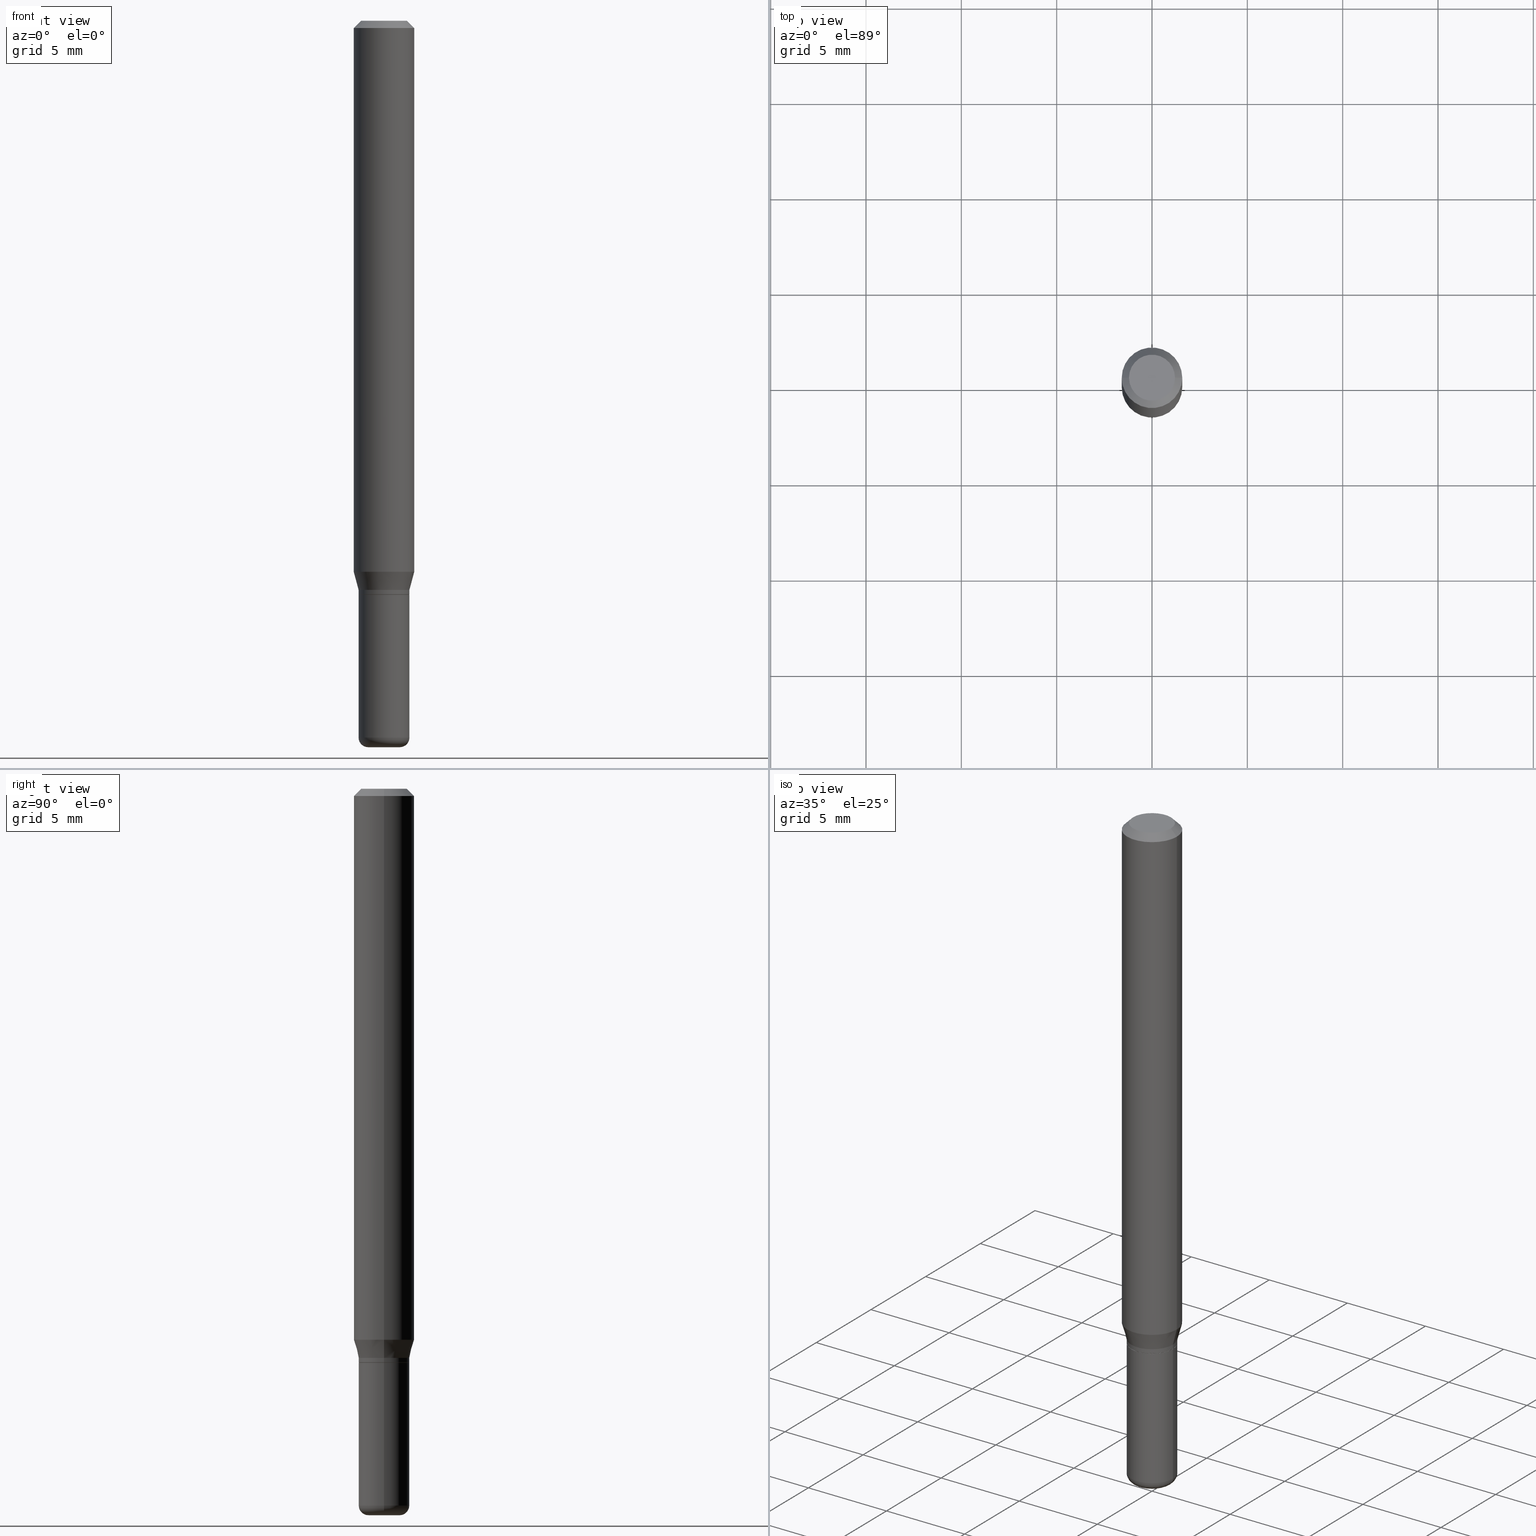
[diagram: canonical four-view strip — front | top / right | iso, engineering-drawing reading convention]
A machine part, canonical four-view strip (front | top / right | iso — engineering-drawing reading convention). The complete STEP part file that produces these views, byte-faithful:
ISO-10303-21;
HEADER;
FILE_DESCRIPTION (( 'STEP AP203' ),
    '1' );
FILE_NAME ('09093.STEP',
    '2024-02-29T22:03:21',
    ( '' ),
    ( '' ),
    'SwSTEP 2.0',
    'SolidWorks 2023',
    '' );
FILE_SCHEMA (( 'CONFIG_CONTROL_DESIGN' ));
ENDSEC;

DATA;
#1 = CARTESIAN_POINT ( 'NONE',  ( 0.05250000000000000500, -3.666055405785290122E-16, 2.559992807292866361E-30 ) ) ;
#2 = ORIENTED_EDGE ( 'NONE', *, *, #431, .F. ) ;
#3 = LOCAL_TIME ( 17, 3, 21.00000000000000000, #38 ) ;
#4 = FACE_OUTER_BOUND ( 'NONE', #452, .T. ) ;
#5 = CARTESIAN_POINT ( 'NONE',  ( 3.619293833154002365E-29, -5.167392381487854879E-15, -1.479999999999999982 ) ) ;
#6 = CARTESIAN_POINT ( 'NONE',  ( 3.668203209277632395E-31, -5.237222008264614861E-17, -0.01499999999999970281 ) ) ;
#7 = AXIS2_PLACEMENT_3D ( 'NONE', #5, #325, #167 ) ;
#8 = EDGE_CURVE ( 'NONE', #424, #492, #353, .T. ) ;
#9 = DIRECTION ( 'NONE',  ( -1.000000000000000000, 7.105427357601009747E-15, 0.000000000000000000 ) ) ;
#10 = MANIFOLD_SOLID_BREP ( 'Body-Move/Copy2[1]', #386 ) ;
#11 = APPLICATION_CONTEXT ( 'configuration controlled 3d designs of mechanical parts and assemblies' ) ;
#12 = FACE_OUTER_BOUND ( 'NONE', #219, .T. ) ;
#13 = AXIS2_PLACEMENT_3D ( 'NONE', #138, #334, #218 ) ;
#14 = APPROVAL_PERSON_ORGANIZATION ( #114, #389, #513 ) ;
#15 = FACE_OUTER_BOUND ( 'NONE', #89, .T. ) ;
#16 = ORIENTED_EDGE ( 'NONE', *, *, #47, .T. ) ;
#17 = MANIFOLD_SOLID_BREP ( 'Body-Move/Copy2[2]', #370 ) ;
#18 = CARTESIAN_POINT ( 'NONE',  ( 0.05250000000000002581, -5.533997922066384039E-15, -1.479999999999999982 ) ) ;
#19 = EDGE_LOOP ( 'NONE', ( #191, #163, #57, #60 ) ) ;
#20 = PERSON_AND_ORGANIZATION ( #408, #461 ) ;
#21 = CARTESIAN_POINT ( 'NONE',  ( 0.06250000000000000000, -4.811533449433669144E-16, -0.01499999999999970281 ) ) ;
#22 = ORIENTED_EDGE ( 'NONE', *, *, #140, .T. ) ;
#23 = APPROVAL_DATE_TIME ( #500, #336 ) ;
#24 = CONICAL_SURFACE ( 'NONE', #446, 0.05200000000000001149, 0.7853981633972775267 ) ;
#25 = PRODUCT_DEFINITION_FORMATION_WITH_SPECIFIED_SOURCE ( 'ANY', '', #327, .NOT_KNOWN. ) ;
#26 = ORIENTED_EDGE ( 'NONE', *, *, #342, .F. ) ;
#27 = EDGE_CURVE ( 'NONE', #378, #230, #159, .T. ) ;
#28 = PLANE ( 'NONE',  #13 ) ;
#29 = VERTEX_POINT ( 'NONE', #205 ) ;
#30 = COORDINATED_UNIVERSAL_TIME_OFFSET ( 5, 0, .BEHIND. ) ;
#31 = CARTESIAN_POINT ( 'NONE',  ( -0.05249999999999999806, -3.628776571327433202E-15, -1.175000000000000266 ) ) ;
#32 = DIRECTION ( 'NONE',  ( 1.000000000000000000, -6.982962677686265922E-15, 0.000000000000000000 ) ) ;
#33 = ADVANCED_FACE ( 'NONE', ( #241 ), #185, .T. ) ;
#34 = DIRECTION ( 'NONE',  ( -2.445468806185136597E-29, 3.491481338843145583E-15, 1.000000000000000000 ) ) ;
#35 = DIRECTION ( 'NONE',  ( 1.000000000000000000, -6.982962677686265922E-15, 4.876176775795935793E-29 ) ) ;
#36 = CARTESIAN_POINT ( 'NONE',  ( -0.06250000000000000000, 4.440892098500626162E-16, -3.074334431409316114E-30 ) ) ;
#37 = DIRECTION ( 'NONE',  ( -2.445468806185136597E-29, 3.491481338843145583E-15, 1.000000000000000000 ) ) ;
#38 = COORDINATED_UNIVERSAL_TIME_OFFSET ( 5, 0, .BEHIND. ) ;
#39 = CC_DESIGN_PERSON_AND_ORGANIZATION_ASSIGNMENT ( #20, #93, ( #327 ) ) ;
#40 = CARTESIAN_POINT ( 'NONE',  ( 0.05249999999999999806, -4.469096113719225841E-15, -1.175000000000000266 ) ) ;
#41 = ORIENTED_EDGE ( 'NONE', *, *, #201, .T. ) ;
#42 = APPROVAL_DATE_TIME ( #403, #389 ) ;
#43 = DIRECTION ( 'NONE',  ( 1.000000000000000000, -6.982962677686272233E-15, 0.000000000000000000 ) ) ;
#44 = AXIS2_PLACEMENT_3D ( 'NONE', #448, #85, #283 ) ;
#45 = CIRCLE ( 'NONE', #242, 0.05200000000000001149 ) ;
#46 = ORIENTED_EDGE ( 'NONE', *, *, #58, .T. ) ;
#47 = EDGE_CURVE ( 'NONE', #255, #279, #246, .T. ) ;
#48 = LINE ( 'NONE', #410, #233 ) ;
#49 = CIRCLE ( 'NONE', #472, 0.05250000000000001193 ) ;
#50 = DIRECTION ( 'NONE',  ( -2.445468806185136597E-29, 3.491481338843145583E-15, 1.000000000000000000 ) ) ;
#51 = ORIENTED_EDGE ( 'NONE', *, *, #458, .F. ) ;
#52 = DIRECTION ( 'NONE',  ( 0.7071067811865479058, -7.319954787623257623E-15, -0.7071067811865471286 ) ) ;
#53 = EDGE_CURVE ( 'NONE', #424, #319, #157, .T. ) ;
#54 = AXIS2_PLACEMENT_3D ( 'NONE', #135, #373, #169 ) ;
#55 =( CONVERSION_BASED_UNIT ( 'INCH', #421 ) LENGTH_UNIT ( ) NAMED_UNIT ( #366 ) );
#56 = CC_DESIGN_SECURITY_CLASSIFICATION ( #377, ( #25 ) ) ;
#57 = ORIENTED_EDGE ( 'NONE', *, *, #367, .T. ) ;
#58 = EDGE_CURVE ( 'NONE', #230, #288, #509, .T. ) ;
#59 = CARTESIAN_POINT ( 'NONE',  ( 0.000000000000000000, 0.000000000000000000, 0.000000000000000000 ) ) ;
#60 = ORIENTED_EDGE ( 'NONE', *, *, #486, .F. ) ;
#61 = DIRECTION ( 'NONE',  ( -2.445468806185136597E-29, 3.491481338843145583E-15, 1.000000000000000000 ) ) ;
#62 = DIRECTION ( 'NONE',  ( 2.438088387897960049E-29, -3.491481338843145188E-15, -1.000000000000000000 ) ) ;
#63 = ADVANCED_FACE ( 'NONE', ( #4 ), #24, .T. ) ;
#64 = EDGE_LOOP ( 'NONE', ( #388, #466, #506, #146 ) ) ;
#65 = CIRCLE ( 'NONE', #322, 0.05200000000000001149 ) ;
#66 = AXIS2_PLACEMENT_3D ( 'NONE', #59, #299, #465 ) ;
#67 = CARTESIAN_POINT ( 'NONE',  ( -6.680649051745406845E-45, 9.538196290434862081E-31, 2.731847993664263218E-16 ) ) ;
#68 = ORIENTED_EDGE ( 'NONE', *, *, #454, .F. ) ;
#69 = CARTESIAN_POINT ( 'NONE',  ( 0.000000000000000000, 0.000000000000000000, 0.000000000000000000 ) ) ;
#70 = DIRECTION ( 'NONE',  ( 1.000000000000000000, -6.982962677686265922E-15, 0.000000000000000000 ) ) ;
#71 = ORIENTED_EDGE ( 'NONE', *, *, #129, .T. ) ;
#72 = ADVANCED_FACE ( 'NONE', ( #277 ), #318, .T. ) ;
#73 = DIRECTION ( 'NONE',  ( 1.000000000000000000, -6.982962677686265922E-15, 0.000000000000000000 ) ) ;
#74 = CARTESIAN_POINT ( 'NONE',  ( 2.897880535329386822E-29, -4.137405386529127541E-15, -1.185000000000000053 ) ) ;
#75 = DIRECTION ( 'NONE',  ( -2.445468806185136597E-29, 3.491481338843145583E-15, 1.000000000000000000 ) ) ;
#76 = AXIS2_PLACEMENT_3D ( 'NONE', #356, #75, #441 ) ;
#77 = DIRECTION ( 'NONE',  ( -0.2588190451025206285, 5.211531920934544731E-15, 0.9659258262890682012 ) ) ;
#78 = APPROVAL_STATUS ( 'not_yet_approved' ) ;
#79 = DIRECTION ( 'NONE',  ( 1.000000000000000000, -6.982962677686258822E-15, 0.000000000000000000 ) ) ;
#80 = DIRECTION ( 'NONE',  ( 1.000000000000000000, -6.982962677686268288E-15, 0.000000000000000000 ) ) ;
#81 = CALENDAR_DATE ( 2024, 29, 2 ) ;
#82 = ADVANCED_BREP_SHAPE_REPRESENTATION ( '09093', ( #10, #17, #308 ), #98 ) ;
#83 = FACE_OUTER_BOUND ( 'NONE', #181, .T. ) ;
#84 = CONICAL_SURFACE ( 'NONE', #387, 0.05249999999999999806, 0.2617993877991493523 ) ;
#85 = DIRECTION ( 'NONE',  ( -2.445468806185136597E-29, 3.491481338843145583E-15, 1.000000000000000000 ) ) ;
#86 = CARTESIAN_POINT ( 'NONE',  ( -0.05249999999999999806, -4.279363947734439070E-15, -1.185000000000000053 ) ) ;
#87 = ADVANCED_FACE ( 'NONE', ( #280 ), #153, .F. ) ;
#88 = DIRECTION ( 'NONE',  ( 7.105427357601001859E-15, 1.000000000000000000, -3.491481338843145583E-15 ) ) ;
#89 = EDGE_LOOP ( 'NONE', ( #495, #237 ) ) ;
#90 = APPROVAL_PERSON_ORGANIZATION ( #464, #243, #260 ) ;
#91 = EDGE_CURVE ( 'NONE', #378, #124, #126, .T. ) ;
#92 = DIRECTION ( 'NONE',  ( 1.000000000000000000, -6.982962677686270655E-15, 0.000000000000000000 ) ) ;
#93 = PERSON_AND_ORGANIZATION_ROLE ( 'design_owner' ) ;
#94 = ADVANCED_FACE ( 'NONE', ( #83 ), #352, .F. ) ;
#95 = DIRECTION ( 'NONE',  ( -2.445468806185136877E-29, 3.491481338843145188E-15, 1.000000000000000000 ) ) ;
#96 = ORIENTED_EDGE ( 'NONE', *, *, #402, .T. ) ;
#97 = CIRCLE ( 'NONE', #44, 0.04750000000000000749 ) ;
#98 =( GEOMETRIC_REPRESENTATION_CONTEXT ( 3 ) GLOBAL_UNCERTAINTY_ASSIGNED_CONTEXT ( ( #501 ) ) GLOBAL_UNIT_ASSIGNED_CONTEXT ( ( #55, #469, #380 ) ) REPRESENTATION_CONTEXT ( 'NONE', 'WORKASPACE' ) );
#99 = DATE_AND_TIME ( #187, #248 ) ;
#100 = DESIGN_CONTEXT ( 'detailed design', #11, 'design' ) ;
#101 = DIRECTION ( 'NONE',  ( -2.445468806185136597E-29, 3.491481338843145583E-15, 1.000000000000000000 ) ) ;
#102 = ORIENTED_EDGE ( 'NONE', *, *, #285, .F. ) ;
#103 = LINE ( 'NONE', #467, #447 ) ;
#104 = EDGE_CURVE ( 'NONE', #144, #485, #198, .T. ) ;
#105 = DIRECTION ( 'NONE',  ( 1.000000000000000000, -6.982962677686268288E-15, 0.000000000000000000 ) ) ;
#106 = ORIENTED_EDGE ( 'NONE', *, *, #104, .T. ) ;
#107 = PERSON_AND_ORGANIZATION ( #408, #461 ) ;
#108 = CYLINDRICAL_SURFACE ( 'NONE', #66, 0.05250000000000001193 ) ;
#109 = ORIENTED_EDGE ( 'NONE', *, *, #409, .F. ) ;
#110 = CALENDAR_DATE ( 2024, 29, 2 ) ;
#111 = AXIS2_PLACEMENT_3D ( 'NONE', #445, #206, #449 ) ;
#112 = DIRECTION ( 'NONE',  ( -2.445468806185136597E-29, 3.491481338843145583E-15, 1.000000000000000000 ) ) ;
#113 = ORIENTED_EDGE ( 'NONE', *, *, #367, .F. ) ;
#114 = PERSON_AND_ORGANIZATION ( #408, #461 ) ;
#115 = ADVANCED_FACE ( 'NONE', ( #368 ), #331, .T. ) ;
#116 = CARTESIAN_POINT ( 'NONE',  ( 3.668203209277632395E-31, -5.237222008264614861E-17, -0.01499999999999970281 ) ) ;
#117 = DIRECTION ( 'NONE',  ( -1.000000000000000000, 6.982962677686265922E-15, -4.876176775795935793E-29 ) ) ;
#118 = LINE ( 'NONE', #358, #497 ) ;
#119 = CARTESIAN_POINT ( 'NONE',  ( 2.873425847267535838E-29, -4.102490573140696681E-15, -1.175000000000000266 ) ) ;
#120 = CARTESIAN_POINT ( 'NONE',  ( 2.896657800926294021E-29, -4.135659645859705249E-15, -1.184499999999999886 ) ) ;
#121 = CONICAL_SURFACE ( 'NONE', #332, 0.05200000000000001149, 0.7853981633972775267 ) ;
#122 = CARTESIAN_POINT ( 'NONE',  ( -0.05249999999999999806, -3.729455636866644146E-15, -1.175000000000000266 ) ) ;
#123 = ADVANCED_FACE ( 'NONE', ( #244 ), #460, .T. ) ;
#124 = VERTEX_POINT ( 'NONE', #455 ) ;
#125 = CARTESIAN_POINT ( 'NONE',  ( 0.000000000000000000, 0.000000000000000000, 0.000000000000000000 ) ) ;
#126 = CIRCLE ( 'NONE', #307, 0.03250000000000000111 ) ;
#127 = DIRECTION ( 'NONE',  ( -2.445468806185136597E-29, 3.491481338843145583E-15, 1.000000000000000000 ) ) ;
#128 = AXIS2_PLACEMENT_3D ( 'NONE', #517, #156, #474 ) ;
#129 = EDGE_CURVE ( 'NONE', #347, #319, #253, .T. ) ;
#130 = DIRECTION ( 'NONE',  ( 2.445468806185136597E-29, -3.491481338843145583E-15, -1.000000000000000000 ) ) ;
#131 = DIRECTION ( 'NONE',  ( -2.445468806185136597E-29, 3.491481338843145583E-15, 1.000000000000000000 ) ) ;
#132 = ORIENTED_EDGE ( 'NONE', *, *, #129, .F. ) ;
#133 = DIRECTION ( 'NONE',  ( -1.000000000000000000, 6.982962677686266711E-15, 0.000000000000000000 ) ) ;
#134 = AXIS2_PLACEMENT_3D ( 'NONE', #238, #34, #236 ) ;
#135 = CARTESIAN_POINT ( 'NONE',  ( 0.000000000000000000, 0.000000000000000000, 0.000000000000000000 ) ) ;
#136 = LINE ( 'NONE', #190, #275 ) ;
#137 = VERTEX_POINT ( 'NONE', #286 ) ;
#138 = CARTESIAN_POINT ( 'NONE',  ( 3.582686580359766038E-29, -5.359686688179453325E-15, -1.500000000000000222 ) ) ;
#139 = VERTEX_POINT ( 'NONE', #413 ) ;
#140 = EDGE_CURVE ( 'NONE', #137, #297, #65, .T. ) ;
#141 = AXIS2_PLACEMENT_3D ( 'NONE', #125, #483, #482 ) ;
#142 = CONICAL_SURFACE ( 'NONE', #282, 0.06250000000000000000, 0.7853981633974488341 ) ;
#143 = CARTESIAN_POINT ( 'NONE',  ( 3.316907271900976589E-16, 0.04750000000000000749, -2.925296391183627249E-17 ) ) ;
#144 = VERTEX_POINT ( 'NONE', #249 ) ;
#145 = DATE_AND_TIME ( #110, #161 ) ;
#146 = ORIENTED_EDGE ( 'NONE', *, *, #27, .F. ) ;
#147 = APPLICATION_PROTOCOL_DEFINITION ( 'international standard', 'config_control_design', 1994, #11 ) ;
#148 = DIRECTION ( 'NONE',  ( -2.445468806185136597E-29, 3.491481338843145583E-15, 1.000000000000000000 ) ) ;
#149 = ORIENTED_EDGE ( 'NONE', *, *, #285, .T. ) ;
#150 = CYLINDRICAL_SURFACE ( 'NONE', #254, 0.05250000000000000500 ) ;
#151 = VECTOR ( 'NONE', #193, 39.37007874015748854 ) ;
#152 = CARTESIAN_POINT ( 'NONE',  ( 3.668203209277632395E-31, -5.237222008264614861E-17, -0.01499999999999970281 ) ) ;
#153 = PLANE ( 'NONE',  #418 ) ;
#154 = DIRECTION ( 'NONE',  ( -2.445468806185136597E-29, 3.491481338843145583E-15, 1.000000000000000000 ) ) ;
#155 = DIRECTION ( 'NONE',  ( 1.000000000000000000, -6.982962677686258033E-15, 0.000000000000000000 ) ) ;
#156 = DIRECTION ( 'NONE',  ( -2.445468806185136597E-29, 3.491481338843145583E-15, 1.000000000000000000 ) ) ;
#157 = LINE ( 'NONE', #122, #339 ) ;
#158 = EDGE_CURVE ( 'NONE', #139, #144, #97, .T. ) ;
#159 = CIRCLE ( 'NONE', #214, 0.02000000000000003511 ) ;
#160 = CARTESIAN_POINT ( 'NONE',  ( 2.897880535329386822E-29, -4.137405386529127541E-15, -1.185000000000000053 ) ) ;
#161 = LOCAL_TIME ( 17, 3, 21.00000000000000000, #343 ) ;
#162 = ORIENTED_EDGE ( 'NONE', *, *, #311, .T. ) ;
#163 = ORIENTED_EDGE ( 'NONE', *, *, #409, .T. ) ;
#164 = DATE_TIME_ROLE ( 'classification_date' ) ;
#165 = EDGE_CURVE ( 'NONE', #124, #288, #362, .T. ) ;
#166 = AXIS2_PLACEMENT_3D ( 'NONE', #119, #37, #80 ) ;
#167 = DIRECTION ( 'NONE',  ( 1.000000000000000000, -6.982962677686264344E-15, 4.883557194083111780E-29 ) ) ;
#168 = ORIENTED_EDGE ( 'NONE', *, *, #158, .F. ) ;
#169 = DIRECTION ( 'NONE',  ( 1.000000000000000000, -6.982962677686266711E-15, 4.876176775795935793E-29 ) ) ;
#170 = FACE_OUTER_BOUND ( 'NONE', #503, .T. ) ;
#171 = EDGE_LOOP ( 'NONE', ( #326, #300, #305, #184 ) ) ;
#172 = CYLINDRICAL_SURFACE ( 'NONE', #330, 0.05250000000000001193 ) ;
#173 = CIRCLE ( 'NONE', #204, 0.03250000000000000111 ) ;
#174 = VECTOR ( 'NONE', #498, 39.37007874015748143 ) ;
#175 = FACE_OUTER_BOUND ( 'NONE', #468, .T. ) ;
#176 = EDGE_LOOP ( 'NONE', ( #292, #372, #132, #314 ) ) ;
#177 = SHAPE_DEFINITION_REPRESENTATION ( #289, #82 ) ;
#178 = DIRECTION ( 'NONE',  ( 0.7071067811864267805, -2.468850131080992517E-15, 0.7071067811866682540 ) ) ;
#179 = CARTESIAN_POINT ( 'NONE',  ( 0.06250000000000000000, -4.364351673553916694E-16, 3.047610484872459871E-30 ) ) ;
#180 = ADVANCED_FACE ( 'NONE', ( #170 ), #265, .T. ) ;
#181 = EDGE_LOOP ( 'NONE', ( #393, #68 ) ) ;
#182 = APPROVAL_ROLE ( '' ) ;
#183 = CARTESIAN_POINT ( 'NONE',  ( -0.05200000000000001149, -3.767923163933875905E-15, -1.185000000000000053 ) ) ;
#184 = ORIENTED_EDGE ( 'NONE', *, *, #8, .F. ) ;
#185 = TOROIDAL_SURFACE ( 'NONE', #439, 0.03249999999999999417, 0.02000000000000003511 ) ;
#186 = LOCAL_TIME ( 17, 3, 21.00000000000000000, #30 ) ;
#187 = CALENDAR_DATE ( 2024, 29, 2 ) ;
#188 = DIRECTION ( 'NONE',  ( -2.445468806185136597E-29, 3.491481338843145583E-15, 1.000000000000000000 ) ) ;
#189 = ORIENTED_EDGE ( 'NONE', *, *, #507, .F. ) ;
#190 = CARTESIAN_POINT ( 'NONE',  ( -0.05250000000000001193, 3.730349362740526824E-16, -2.582440922383826362E-30 ) ) ;
#191 = ORIENTED_EDGE ( 'NONE', *, *, #301, .F. ) ;
#192 =( LENGTH_UNIT ( ) NAMED_UNIT ( * ) SI_UNIT ( $, .METRE. ) );
#193 = DIRECTION ( 'NONE',  ( 0.2588190451025206285, 1.565188264969627095E-15, 0.9659258262890682012 ) ) ;
#194 = DIRECTION ( 'NONE',  ( 2.438088387897960049E-29, -3.491481338843145188E-15, -1.000000000000000000 ) ) ;
#195 = EDGE_CURVE ( 'NONE', #279, #424, #48, .T. ) ;
#196 = CIRCLE ( 'NONE', #76, 0.05249999999999999806 ) ;
#197 = DIRECTION ( 'NONE',  ( 1.000000000000000000, -6.982962677686266711E-15, 0.000000000000000000 ) ) ;
#198 = LINE ( 'NONE', #515, #488 ) ;
#199 = CARTESIAN_POINT ( 'NONE',  ( 0.000000000000000000, 0.000000000000000000, 0.000000000000000000 ) ) ;
#200 = DIRECTION ( 'NONE',  ( 1.000000000000000000, -6.982962677686264344E-15, 4.883557194083111780E-29 ) ) ;
#201 = EDGE_CURVE ( 'NONE', #124, #378, #173, .T. ) ;
#202 = DIRECTION ( 'NONE',  ( 1.000000000000000000, -6.982962677686268288E-15, 0.000000000000000000 ) ) ;
#203 = DIRECTION ( 'NONE',  ( -2.445468806185136597E-29, 3.491481338843145583E-15, 1.000000000000000000 ) ) ;
#204 = AXIS2_PLACEMENT_3D ( 'NONE', #487, #50, #208 ) ;
#205 = CARTESIAN_POINT ( 'NONE',  ( 0.05249999999999999806, -4.504010927107656701E-15, -1.185000000000000053 ) ) ;
#206 = DIRECTION ( 'NONE',  ( -2.445468806185136597E-29, 3.491481338843145583E-15, 1.000000000000000000 ) ) ;
#207 = ADVANCED_FACE ( 'NONE', ( #12 ), #172, .T. ) ;
#208 = DIRECTION ( 'NONE',  ( 1.000000000000000000, -6.982962677686258033E-15, 0.000000000000000000 ) ) ;
#209 = CIRCLE ( 'NONE', #234, 0.05249999999999999806 ) ;
#210 = CARTESIAN_POINT ( 'NONE',  ( -0.03249999999999999417, -4.936465992365822507E-15, -1.479999999999999982 ) ) ;
#211 = EDGE_CURVE ( 'NONE', #319, #347, #274, .T. ) ;
#212 = ORIENTED_EDGE ( 'NONE', *, *, #491, .T. ) ;
#213 = CARTESIAN_POINT ( 'NONE',  ( -0.05250000000000001887, -4.279363947734439070E-15, -1.479999999999999982 ) ) ;
#214 = AXIS2_PLACEMENT_3D ( 'NONE', #401, #357, #43 ) ;
#215 = CONICAL_SURFACE ( 'NONE', #406, 0.05249999999999999806, 0.2617993877991493523 ) ;
#216 = VERTEX_POINT ( 'NONE', #86 ) ;
#217 = EDGE_CURVE ( 'NONE', #144, #139, #405, .T. ) ;
#218 = DIRECTION ( 'NONE',  ( 1.000000000000000000, -6.982962677686265922E-15, 4.876176775795935793E-29 ) ) ;
#219 = EDGE_LOOP ( 'NONE', ( #46, #258, #51, #113 ) ) ;
#220 = ORIENTED_EDGE ( 'NONE', *, *, #427, .T. ) ;
#221 = MECHANICAL_CONTEXT ( 'NONE', #411, 'mechanical' ) ;
#222 = ORIENTED_EDGE ( 'NONE', *, *, #454, .T. ) ;
#223 = AXIS2_PLACEMENT_3D ( 'NONE', #359, #203, #270 ) ;
#224 = LOCAL_TIME ( 17, 3, 21.00000000000000000, #355 ) ;
#225 = APPLICATION_PROTOCOL_DEFINITION ( 'international standard', 'config_control_design', 1994, #411 ) ;
#226 = FACE_OUTER_BOUND ( 'NONE', #290, .T. ) ;
#227 = ORIENTED_EDGE ( 'NONE', *, *, #402, .F. ) ;
#228 = DIRECTION ( 'NONE',  ( 1.000000000000000000, -6.982962677686265922E-15, 4.876176775795935232E-29 ) ) ;
#229 = CARTESIAN_POINT ( 'NONE',  ( 2.897880535329386822E-29, -4.137405386529127541E-15, -1.185000000000000053 ) ) ;
#230 = VERTEX_POINT ( 'NONE', #18 ) ;
#231 = CARTESIAN_POINT ( 'NONE',  ( -0.06250000000000000000, -1.568190258010402571E-15, -0.01499999999999970281 ) ) ;
#232 = DIRECTION ( 'NONE',  ( -2.438088387897960049E-29, 3.491481338843145188E-15, 1.000000000000000000 ) ) ;
#233 = VECTOR ( 'NONE', #323, 39.37007874015748143 ) ;
#234 = AXIS2_PLACEMENT_3D ( 'NONE', #344, #360, #202 ) ;
#235 = ADVANCED_FACE ( 'NONE', ( #175 ), #28, .F. ) ;
#236 = DIRECTION ( 'NONE',  ( 1.000000000000000000, -6.982962677686266711E-15, 0.000000000000000000 ) ) ;
#237 = ORIENTED_EDGE ( 'NONE', *, *, #158, .T. ) ;
#238 = CARTESIAN_POINT ( 'NONE',  ( 3.668203209277632395E-31, -5.237222008264614861E-17, -0.01499999999999970281 ) ) ;
#239 = ORIENTED_EDGE ( 'NONE', *, *, #27, .T. ) ;
#240 = CALENDAR_DATE ( 2024, 29, 2 ) ;
#241 = FACE_OUTER_BOUND ( 'NONE', #64, .T. ) ;
#242 = AXIS2_PLACEMENT_3D ( 'NONE', #160, #148, #70 ) ;
#243 = APPROVAL ( #349, 'UNSPECIFIED' ) ;
#244 = FACE_OUTER_BOUND ( 'NONE', #429, .T. ) ;
#245 = ADVANCED_FACE ( 'NONE', ( #226 ), #215, .T. ) ;
#246 = CIRCLE ( 'NONE', #223, 0.05250000000000001193 ) ;
#247 = CARTESIAN_POINT ( 'NONE',  ( 0.000000000000000000, 0.000000000000000000, 0.000000000000000000 ) ) ;
#248 = LOCAL_TIME ( 17, 3, 21.00000000000000000, #252 ) ;
#249 = CARTESIAN_POINT ( 'NONE',  ( -0.04750000000000000749, 3.578768372314221353E-16, 2.731847993664239060E-16 ) ) ;
#250 = DIRECTION ( 'NONE',  ( 1.000000000000000000, -6.982962677686266711E-15, 4.852736867747365086E-29 ) ) ;
#251 = ADVANCED_FACE ( 'NONE', ( #490 ), #84, .T. ) ;
#252 = COORDINATED_UNIVERSAL_TIME_OFFSET ( 5, 0, .BEHIND. ) ;
#253 = CIRCLE ( 'NONE', #315, 0.06250000000000000000 ) ;
#254 = AXIS2_PLACEMENT_3D ( 'NONE', #69, #61, #228 ) ;
#255 = VERTEX_POINT ( 'NONE', #425 ) ;
#256 = APPROVAL_DATE_TIME ( #145, #243 ) ;
#257 = CARTESIAN_POINT ( 'NONE',  ( -0.06250000000000000000, -3.528097505788221863E-15, -1.137679491924311392 ) ) ;
#258 = ORIENTED_EDGE ( 'NONE', *, *, #301, .T. ) ;
#259 = PRODUCT_RELATED_PRODUCT_CATEGORY ( 'detail', '', ( #327 ) ) ;
#260 = APPROVAL_ROLE ( '' ) ;
#261 = EDGE_LOOP ( 'NONE', ( #71, #96, #2, #518 ) ) ;
#262 = SECURITY_CLASSIFICATION_LEVEL ( 'unclassified' ) ;
#263 = CARTESIAN_POINT ( 'NONE',  ( -0.05200000000000001149, -3.765273936759763915E-15, -1.185000000000000053 ) ) ;
#264 = ORIENTED_EDGE ( 'NONE', *, *, #217, .F. ) ;
#265 = CONICAL_SURFACE ( 'NONE', #496, 0.06250000000000000000, 0.7853981633974488341 ) ;
#266 = PERSON_AND_ORGANIZATION_ROLE ( 'creator' ) ;
#267 = FACE_OUTER_BOUND ( 'NONE', #333, .T. ) ;
#268 = ORIENTED_EDGE ( 'NONE', *, *, #104, .F. ) ;
#269 = LINE ( 'NONE', #40, #151 ) ;
#270 = DIRECTION ( 'NONE',  ( 1.000000000000000000, -6.982962677686257244E-15, 0.000000000000000000 ) ) ;
#271 = EDGE_CURVE ( 'NONE', #347, #338, #416, .T. ) ;
#272 = DIRECTION ( 'NONE',  ( -2.445468806185136597E-29, 3.491481338843145583E-15, 1.000000000000000000 ) ) ;
#273 = DIRECTION ( 'NONE',  ( -2.445468806185136597E-29, 3.491481338843145583E-15, 1.000000000000000000 ) ) ;
#274 = CIRCLE ( 'NONE', #111, 0.06250000000000000000 ) ;
#275 = VECTOR ( 'NONE', #95, 39.37007874015748143 ) ;
#276 = DIRECTION ( 'NONE',  ( 1.000000000000000000, -6.982962677686257244E-15, 0.000000000000000000 ) ) ;
#277 = FACE_OUTER_BOUND ( 'NONE', #302, .T. ) ;
#278 = CC_DESIGN_PERSON_AND_ORGANIZATION_ASSIGNMENT ( #384, #430, ( #25 ) ) ;
#279 = VERTEX_POINT ( 'NONE', #337 ) ;
#280 = FACE_OUTER_BOUND ( 'NONE', #335, .T. ) ;
#281 = AXIS2_PLACEMENT_3D ( 'NONE', #442, #364, #404 ) ;
#282 = AXIS2_PLACEMENT_3D ( 'NONE', #152, #479, #435 ) ;
#283 = DIRECTION ( 'NONE',  ( 1.000000000000000000, -6.982962677686266711E-15, 4.852736867747365086E-29 ) ) ;
#284 = DIRECTION ( 'NONE',  ( 1.000000000000000000, -6.982962677686265922E-15, 4.876176775795936353E-29 ) ) ;
#285 = EDGE_CURVE ( 'NONE', #139, #338, #494, .T. ) ;
#286 = CARTESIAN_POINT ( 'NONE',  ( 0.05200000000000001149, -4.500519445768813694E-15, -1.185000000000000053 ) ) ;
#287 = CC_DESIGN_APPROVAL ( #389, ( #377 ) ) ;
#288 = VERTEX_POINT ( 'NONE', #213 ) ;
#289 = PRODUCT_DEFINITION_SHAPE ( 'NONE', 'NONE',  #371 ) ;
#290 = EDGE_LOOP ( 'NONE', ( #374, #345, #220, #463 ) ) ;
#291 = LINE ( 'NONE', #183, #174 ) ;
#292 = ORIENTED_EDGE ( 'NONE', *, *, #342, .T. ) ;
#293 = PERSON_AND_ORGANIZATION ( #408, #461 ) ;
#294 = ADVANCED_FACE ( 'NONE', ( #15 ), #376, .F. ) ;
#295 = DIRECTION ( 'NONE',  ( -1.000000000000000000, 6.982962677686265922E-15, -4.876176775795935793E-29 ) ) ;
#296 = VECTOR ( 'NONE', #437, 39.37007874015748143 ) ;
#297 = VERTEX_POINT ( 'NONE', #263 ) ;
#298 = CALENDAR_DATE ( 2024, 29, 2 ) ;
#299 = DIRECTION ( 'NONE',  ( -2.445468806185136597E-29, 3.491481338843145583E-15, 1.000000000000000000 ) ) ;
#300 = ORIENTED_EDGE ( 'NONE', *, *, #444, .T. ) ;
#301 = EDGE_CURVE ( 'NONE', #288, #216, #136, .T. ) ;
#302 = EDGE_LOOP ( 'NONE', ( #227, #426, #457, #473 ) ) ;
#303 = DATE_TIME_ROLE ( 'creation_date' ) ;
#304 = CARTESIAN_POINT ( 'NONE',  ( 0.06250000000000000000, -4.408621882993675754E-15, -1.137679491924311392 ) ) ;
#305 = ORIENTED_EDGE ( 'NONE', *, *, #422, .T. ) ;
#306 = AXIS2_PLACEMENT_3D ( 'NONE', #74, #232, #35 ) ;
#307 = AXIS2_PLACEMENT_3D ( 'NONE', #477, #436, #155 ) ;
#308 = AXIS2_PLACEMENT_3D ( 'NONE', #346, #309, #391 ) ;
#309 = DIRECTION ( 'NONE',  ( 0.000000000000000000, 0.000000000000000000, 1.000000000000000000 ) ) ;
#310 = ORIENTED_EDGE ( 'NONE', *, *, #444, .F. ) ;
#311 = EDGE_CURVE ( 'NONE', #297, #279, #291, .T. ) ;
#312 = FACE_OUTER_BOUND ( 'NONE', #379, .T. ) ;
#313 = FACE_OUTER_BOUND ( 'NONE', #171, .T. ) ;
#314 = ORIENTED_EDGE ( 'NONE', *, *, #427, .F. ) ;
#315 = AXIS2_PLACEMENT_3D ( 'NONE', #407, #131, #92 ) ;
#316 = CIRCLE ( 'NONE', #134, 0.06250000000000000000 ) ;
#317 = LINE ( 'NONE', #1, #296 ) ;
#318 = CYLINDRICAL_SURFACE ( 'NONE', #141, 0.06250000000000000000 ) ;
#319 = VERTEX_POINT ( 'NONE', #257 ) ;
#320 = CC_DESIGN_PERSON_AND_ORGANIZATION_ASSIGNMENT ( #508, #434, ( #377 ) ) ;
#321 = CARTESIAN_POINT ( 'NONE',  ( 2.897880535329386822E-29, -4.137405386529127541E-15, -1.185000000000000053 ) ) ;
#322 = AXIS2_PLACEMENT_3D ( 'NONE', #321, #127, #451 ) ;
#323 = DIRECTION ( 'NONE',  ( -2.445468806185136877E-29, 3.491481338843145188E-15, 1.000000000000000000 ) ) ;
#324 = ADVANCED_FACE ( 'NONE', ( #423 ), #108, .T. ) ;
#325 = DIRECTION ( 'NONE',  ( -2.445468806185136597E-29, 3.491481338843145583E-15, 1.000000000000000000 ) ) ;
#326 = ORIENTED_EDGE ( 'NONE', *, *, #195, .F. ) ;
#327 = PRODUCT ( '09093', '09093', '', ( #221 ) ) ;
#328 = CC_DESIGN_PERSON_AND_ORGANIZATION_ASSIGNMENT ( #293, #459, ( #371 ) ) ;
#329 = ORIENTED_EDGE ( 'NONE', *, *, #201, .F. ) ;
#330 = AXIS2_PLACEMENT_3D ( 'NONE', #247, #365, #284 ) ;
#331 = CYLINDRICAL_SURFACE ( 'NONE', #54, 0.06250000000000000000 ) ;
#332 = AXIS2_PLACEMENT_3D ( 'NONE', #229, #351, #73 ) ;
#333 = EDGE_LOOP ( 'NONE', ( #395, #222, #369, #310 ) ) ;
#334 = DIRECTION ( 'NONE',  ( -2.438088387897960049E-29, 3.491481338843145188E-15, 1.000000000000000000 ) ) ;
#335 = EDGE_LOOP ( 'NONE', ( #420, #383 ) ) ;
#336 = APPROVAL ( #504, 'UNSPECIFIED' ) ;
#337 = CARTESIAN_POINT ( 'NONE',  ( -0.05250000000000001193, -3.762624709585653503E-15, -1.184499999999999886 ) ) ;
#338 = VERTEX_POINT ( 'NONE', #385 ) ;
#339 = VECTOR ( 'NONE', #77, 39.37007874015748854 ) ;
#340 = AXIS2_PLACEMENT_3D ( 'NONE', #394, #154, #79 ) ;
#341 = ORIENTED_EDGE ( 'NONE', *, *, #165, .F. ) ;
#342 = EDGE_CURVE ( 'NONE', #492, #424, #209, .T. ) ;
#343 = COORDINATED_UNIVERSAL_TIME_OFFSET ( 5, 0, .BEHIND. ) ;
#344 = CARTESIAN_POINT ( 'NONE',  ( 2.873425847267535838E-29, -4.102490573140696681E-15, -1.175000000000000266 ) ) ;
#345 = ORIENTED_EDGE ( 'NONE', *, *, #8, .T. ) ;
#346 = CARTESIAN_POINT ( 'NONE',  ( 0.000000000000000000, 0.000000000000000000, 0.000000000000000000 ) ) ;
#347 = VERTEX_POINT ( 'NONE', #304 ) ;
#348 = CC_DESIGN_DATE_AND_TIME_ASSIGNMENT ( #99, #303, ( #371 ) ) ;
#349 = APPROVAL_STATUS ( 'not_yet_approved' ) ;
#350 = ADVANCED_FACE ( 'NONE', ( #312 ), #142, .T. ) ;
#351 = DIRECTION ( 'NONE',  ( -2.445468806185136597E-29, 3.491481338843145583E-15, 1.000000000000000000 ) ) ;
#352 = PLANE ( 'NONE',  #306 ) ;
#353 = CIRCLE ( 'NONE', #166, 0.05249999999999999806 ) ;
#354 = AXIS2_PLACEMENT_3D ( 'NONE', #199, #272, #514 ) ;
#355 = COORDINATED_UNIVERSAL_TIME_OFFSET ( 5, 0, .BEHIND. ) ;
#356 = CARTESIAN_POINT ( 'NONE',  ( 2.897880535329386822E-29, -4.137405386529127541E-15, -1.185000000000000053 ) ) ;
#357 = DIRECTION ( 'NONE',  ( -6.982962677686266711E-15, -1.000000000000000000, 3.491481338843145583E-15 ) ) ;
#358 = CARTESIAN_POINT ( 'NONE',  ( 0.05250000000000001193, -3.666055405785290615E-16, 2.559992807292867062E-30 ) ) ;
#359 = CARTESIAN_POINT ( 'NONE',  ( 2.896657800926294021E-29, -4.135659645859705249E-15, -1.184499999999999886 ) ) ;
#360 = DIRECTION ( 'NONE',  ( -2.445468806185136597E-29, 3.491481338843145583E-15, 1.000000000000000000 ) ) ;
#361 = DIRECTION ( 'NONE',  ( -2.445468806185136597E-29, 3.491481338843145583E-15, 1.000000000000000000 ) ) ;
#362 = CIRCLE ( 'NONE', #396, 0.02000000000000003511 ) ;
#363 = VECTOR ( 'NONE', #52, 39.37007874015748143 ) ;
#364 = DIRECTION ( 'NONE',  ( -2.445468806185136597E-29, 3.491481338843145583E-15, 1.000000000000000000 ) ) ;
#365 = DIRECTION ( 'NONE',  ( -2.445468806185136597E-29, 3.491481338843145583E-15, 1.000000000000000000 ) ) ;
#366 = DIMENSIONAL_EXPONENTS ( 1.000000000000000000, 0.000000000000000000, 0.000000000000000000, 0.000000000000000000, 0.000000000000000000, 0.000000000000000000, 0.000000000000000000 ) ;
#367 = EDGE_CURVE ( 'NONE', #230, #29, #118, .T. ) ;
#368 = FACE_OUTER_BOUND ( 'NONE', #261, .T. ) ;
#369 = ORIENTED_EDGE ( 'NONE', *, *, #507, .T. ) ;
#370 = CLOSED_SHELL ( 'NONE', ( #516, #63, #350, #115, #251, #245, #72, #180, #294, #94, #478, #382 ) ) ;
#371 = PRODUCT_DEFINITION ( 'UNKNOWN', '', #25, #100 ) ;
#372 = ORIENTED_EDGE ( 'NONE', *, *, #53, .T. ) ;
#373 = DIRECTION ( 'NONE',  ( -2.445468806185136597E-29, 3.491481338843145583E-15, 1.000000000000000000 ) ) ;
#374 = ORIENTED_EDGE ( 'NONE', *, *, #53, .F. ) ;
#375 = AXIS2_PLACEMENT_3D ( 'NONE', #143, #62, #295 ) ;
#376 = PLANE ( 'NONE',  #375 ) ;
#377 = SECURITY_CLASSIFICATION ( '', '', #262 ) ;
#378 = VERTEX_POINT ( 'NONE', #510 ) ;
#379 = EDGE_LOOP ( 'NONE', ( #168, #149, #480, #268 ) ) ;
#380 =( NAMED_UNIT ( * ) SI_UNIT ( $, .STERADIAN. ) SOLID_ANGLE_UNIT ( ) );
#381 = DIRECTION ( 'NONE',  ( -2.445468806185136597E-29, 3.491481338843145583E-15, 1.000000000000000000 ) ) ;
#382 = ADVANCED_FACE ( 'NONE', ( #313 ), #470, .T. ) ;
#383 = ORIENTED_EDGE ( 'NONE', *, *, #486, .T. ) ;
#384 = PERSON_AND_ORGANIZATION ( #408, #461 ) ;
#385 = CARTESIAN_POINT ( 'NONE',  ( 0.06250000000000000000, -4.888073874380378612E-16, -0.01499999999999970281 ) ) ;
#386 = CLOSED_SHELL ( 'NONE', ( #33, #207, #87, #324, #123, #235 ) ) ;
#387 = AXIS2_PLACEMENT_3D ( 'NONE', #456, #381, #502 ) ;
#388 = ORIENTED_EDGE ( 'NONE', *, *, #91, .T. ) ;
#389 = APPROVAL ( #78, 'UNSPECIFIED' ) ;
#390 = ORIENTED_EDGE ( 'NONE', *, *, #91, .F. ) ;
#391 = DIRECTION ( 'NONE',  ( 1.000000000000000000, 0.000000000000000000, 0.000000000000000000 ) ) ;
#392 = LINE ( 'NONE', #36, #484 ) ;
#393 = ORIENTED_EDGE ( 'NONE', *, *, #140, .F. ) ;
#394 = CARTESIAN_POINT ( 'NONE',  ( 2.897880535329386822E-29, -4.137405386529127541E-15, -1.185000000000000053 ) ) ;
#395 = ORIENTED_EDGE ( 'NONE', *, *, #311, .F. ) ;
#396 = AXIS2_PLACEMENT_3D ( 'NONE', #210, #88, #9 ) ;
#397 = DATE_AND_TIME ( #81, #224 ) ;
#398 = DIRECTION ( 'NONE',  ( -2.445468806185136877E-29, 3.491481338843145188E-15, 1.000000000000000000 ) ) ;
#399 = ORIENTED_EDGE ( 'NONE', *, *, #422, .F. ) ;
#400 = CARTESIAN_POINT ( 'NONE',  ( 0.05249999999999999806, -4.469096113719225841E-15, -1.175000000000000266 ) ) ;
#401 = CARTESIAN_POINT ( 'NONE',  ( 0.03249999999999999417, -5.394338668512658231E-15, -1.479999999999999982 ) ) ;
#402 = EDGE_CURVE ( 'NONE', #319, #485, #392, .T. ) ;
#403 = DATE_AND_TIME ( #240, #3 ) ;
#404 = DIRECTION ( 'NONE',  ( 1.000000000000000000, -6.982962677686264344E-15, 0.000000000000000000 ) ) ;
#405 = CIRCLE ( 'NONE', #471, 0.04750000000000000749 ) ;
#406 = AXIS2_PLACEMENT_3D ( 'NONE', #462, #188, #105 ) ;
#407 = CARTESIAN_POINT ( 'NONE',  ( 2.782159708937458673E-29, -3.972186715638284085E-15, -1.137679491924311392 ) ) ;
#408 = PERSON ( 'UNSPECIFIED', 'UNSPECIFIED', 'UNSPECIFIED', ('UNSPECIFIED'), ('UNSPECIFIED'), ('UNSPECIFIED') ) ;
#409 = EDGE_CURVE ( 'NONE', #288, #230, #428, .T. ) ;
#410 = CARTESIAN_POINT ( 'NONE',  ( -0.05250000000000000500, 3.730349362740526331E-16, -2.582440922383825662E-30 ) ) ;
#411 = APPLICATION_CONTEXT ( 'configuration controlled 3d designs of mechanical parts and assemblies' ) ;
#412 = APPROVAL_PERSON_ORGANIZATION ( #493, #336, #182 ) ;
#413 = CARTESIAN_POINT ( 'NONE',  ( 0.04750000000000000749, -4.035134999187568762E-16, 2.731847993664288856E-16 ) ) ;
#414 = DIRECTION ( 'NONE',  ( -0.7071067811865479058, 2.468850131082261005E-15, -0.7071067811865471286 ) ) ;
#415 = CC_DESIGN_DATE_AND_TIME_ASSIGNMENT ( #397, #164, ( #377 ) ) ;
#416 = LINE ( 'NONE', #179, #511 ) ;
#417 = FACE_OUTER_BOUND ( 'NONE', #438, .T. ) ;
#418 = AXIS2_PLACEMENT_3D ( 'NONE', #443, #194, #117 ) ;
#419 = CIRCLE ( 'NONE', #440, 0.06250000000000000000 ) ;
#420 = ORIENTED_EDGE ( 'NONE', *, *, #458, .T. ) ;
#421 = LENGTH_MEASURE_WITH_UNIT ( LENGTH_MEASURE( 0.02539999999999999897 ), #192 );
#422 = EDGE_CURVE ( 'NONE', #255, #492, #317, .T. ) ;
#423 = FACE_OUTER_BOUND ( 'NONE', #19, .T. ) ;
#424 = VERTEX_POINT ( 'NONE', #31 ) ;
#425 = CARTESIAN_POINT ( 'NONE',  ( 0.05250000000000001193, -4.502265186438235198E-15, -1.184499999999999886 ) ) ;
#426 = ORIENTED_EDGE ( 'NONE', *, *, #211, .T. ) ;
#427 = EDGE_CURVE ( 'NONE', #492, #347, #269, .T. ) ;
#428 = CIRCLE ( 'NONE', #128, 0.05250000000000002581 ) ;
#429 = EDGE_LOOP ( 'NONE', ( #341, #41, #239, #109 ) ) ;
#430 = PERSON_AND_ORGANIZATION_ROLE ( 'design_supplier' ) ;
#431 = EDGE_CURVE ( 'NONE', #338, #485, #419, .T. ) ;
#432 = DIRECTION ( 'NONE',  ( -2.445468806185136597E-29, 3.491481338843145583E-15, 1.000000000000000000 ) ) ;
#433 = ORIENTED_EDGE ( 'NONE', *, *, #195, .T. ) ;
#434 = PERSON_AND_ORGANIZATION_ROLE ( 'classification_officer' ) ;
#435 = DIRECTION ( 'NONE',  ( -1.000000000000000000, 6.982962677686266711E-15, 0.000000000000000000 ) ) ;
#436 = DIRECTION ( 'NONE',  ( -2.445468806185136597E-29, 3.491481338843145583E-15, 1.000000000000000000 ) ) ;
#437 = DIRECTION ( 'NONE',  ( -2.445468806185136877E-29, 3.491481338843145188E-15, 1.000000000000000000 ) ) ;
#438 = EDGE_LOOP ( 'NONE', ( #16, #433, #26, #399 ) ) ;
#439 = AXIS2_PLACEMENT_3D ( 'NONE', #512, #273, #200 ) ;
#440 = AXIS2_PLACEMENT_3D ( 'NONE', #116, #112, #197 ) ;
#441 = DIRECTION ( 'NONE',  ( 1.000000000000000000, -6.982962677686258822E-15, 0.000000000000000000 ) ) ;
#442 = CARTESIAN_POINT ( 'NONE',  ( 3.619293833154002365E-29, -5.167392381487854879E-15, -1.479999999999999982 ) ) ;
#443 = CARTESIAN_POINT ( 'NONE',  ( 3.666055405785579535E-16, 0.05249999999999585554, -1.185000000000000275 ) ) ;
#444 = EDGE_CURVE ( 'NONE', #279, #255, #49, .T. ) ;
#445 = CARTESIAN_POINT ( 'NONE',  ( 2.782159708937458673E-29, -3.972186715638284085E-15, -1.137679491924311392 ) ) ;
#446 = AXIS2_PLACEMENT_3D ( 'NONE', #475, #361, #32 ) ;
#447 = VECTOR ( 'NONE', #178, 39.37007874015748143 ) ;
#448 = CARTESIAN_POINT ( 'NONE',  ( -6.680649051745406845E-45, 9.538196290434862081E-31, 2.731847993664263218E-16 ) ) ;
#449 = DIRECTION ( 'NONE',  ( 1.000000000000000000, -6.982962677686270655E-15, 0.000000000000000000 ) ) ;
#450 = CC_DESIGN_PERSON_AND_ORGANIZATION_ASSIGNMENT ( #107, #266, ( #25 ) ) ;
#451 = DIRECTION ( 'NONE',  ( 1.000000000000000000, -6.982962677686265922E-15, 0.000000000000000000 ) ) ;
#452 = EDGE_LOOP ( 'NONE', ( #22, #162, #499, #189 ) ) ;
#453 = CC_DESIGN_APPROVAL ( #243, ( #25 ) ) ;
#454 = EDGE_CURVE ( 'NONE', #297, #137, #45, .T. ) ;
#455 = CARTESIAN_POINT ( 'NONE',  ( -0.03250000000000000111, -4.900326532178244075E-15, -1.500000000000000222 ) ) ;
#456 = CARTESIAN_POINT ( 'NONE',  ( 2.873425847267535838E-29, -4.102490573140696681E-15, -1.175000000000000266 ) ) ;
#457 = ORIENTED_EDGE ( 'NONE', *, *, #271, .T. ) ;
#458 = EDGE_CURVE ( 'NONE', #29, #216, #196, .T. ) ;
#459 = PERSON_AND_ORGANIZATION_ROLE ( 'creator' ) ;
#460 = TOROIDAL_SURFACE ( 'NONE', #7, 0.03249999999999999417, 0.02000000000000003511 ) ;
#461 = ORGANIZATION ( 'UNSPECIFIED', 'UNSPECIFIED', '' ) ;
#462 = CARTESIAN_POINT ( 'NONE',  ( 2.873425847267535838E-29, -4.102490573140696681E-15, -1.175000000000000266 ) ) ;
#463 = ORIENTED_EDGE ( 'NONE', *, *, #211, .F. ) ;
#464 = PERSON_AND_ORGANIZATION ( #408, #461 ) ;
#465 = DIRECTION ( 'NONE',  ( 1.000000000000000000, -6.982962677686265922E-15, 4.876176775795936353E-29 ) ) ;
#466 = ORIENTED_EDGE ( 'NONE', *, *, #165, .T. ) ;
#467 = CARTESIAN_POINT ( 'NONE',  ( 0.05200000000000001149, -4.500519445768813694E-15, -1.185000000000000053 ) ) ;
#468 = EDGE_LOOP ( 'NONE', ( #390, #329 ) ) ;
#469 =( NAMED_UNIT ( * ) PLANE_ANGLE_UNIT ( ) SI_UNIT ( $, .RADIAN. ) );
#470 = CYLINDRICAL_SURFACE ( 'NONE', #354, 0.05250000000000000500 ) ;
#471 = AXIS2_PLACEMENT_3D ( 'NONE', #67, #101, #250 ) ;
#472 = AXIS2_PLACEMENT_3D ( 'NONE', #120, #432, #276 ) ;
#473 = ORIENTED_EDGE ( 'NONE', *, *, #491, .F. ) ;
#474 = DIRECTION ( 'NONE',  ( 1.000000000000000000, -6.982962677686264344E-15, 0.000000000000000000 ) ) ;
#475 = CARTESIAN_POINT ( 'NONE',  ( 2.897880535329386822E-29, -4.137405386529127541E-15, -1.185000000000000053 ) ) ;
#476 = DIRECTION ( 'NONE',  ( -2.445468806185136877E-29, 3.491481338843145188E-15, 1.000000000000000000 ) ) ;
#477 = CARTESIAN_POINT ( 'NONE',  ( 3.668203209277704895E-29, -5.237222008264718177E-15, -1.500000000000000222 ) ) ;
#478 = ADVANCED_FACE ( 'NONE', ( #267 ), #121, .T. ) ;
#479 = DIRECTION ( 'NONE',  ( 2.445468806185136597E-29, -3.491481338843145583E-15, -1.000000000000000000 ) ) ;
#480 = ORIENTED_EDGE ( 'NONE', *, *, #431, .T. ) ;
#481 = CC_DESIGN_APPROVAL ( #336, ( #371 ) ) ;
#482 = DIRECTION ( 'NONE',  ( 1.000000000000000000, -6.982962677686266711E-15, 4.876176775795935793E-29 ) ) ;
#483 = DIRECTION ( 'NONE',  ( -2.445468806185136597E-29, 3.491481338843145583E-15, 1.000000000000000000 ) ) ;
#484 = VECTOR ( 'NONE', #476, 39.37007874015748143 ) ;
#485 = VERTEX_POINT ( 'NONE', #231 ) ;
#486 = EDGE_CURVE ( 'NONE', #216, #29, #489, .T. ) ;
#487 = CARTESIAN_POINT ( 'NONE',  ( 3.668203209277704895E-29, -5.237222008264718177E-15, -1.500000000000000222 ) ) ;
#488 = VECTOR ( 'NONE', #414, 39.37007874015748143 ) ;
#489 = CIRCLE ( 'NONE', #340, 0.05249999999999999806 ) ;
#490 = FACE_OUTER_BOUND ( 'NONE', #176, .T. ) ;
#491 = EDGE_CURVE ( 'NONE', #485, #338, #316, .T. ) ;
#492 = VERTEX_POINT ( 'NONE', #400 ) ;
#493 = PERSON_AND_ORGANIZATION ( #408, #461 ) ;
#494 = LINE ( 'NONE', #21, #363 ) ;
#495 = ORIENTED_EDGE ( 'NONE', *, *, #217, .T. ) ;
#496 = AXIS2_PLACEMENT_3D ( 'NONE', #6, #130, #133 ) ;
#497 = VECTOR ( 'NONE', #398, 39.37007874015748143 ) ;
#498 = DIRECTION ( 'NONE',  ( -0.7071067811864267805, 7.493145998869918709E-15, 0.7071067811866682540 ) ) ;
#499 = ORIENTED_EDGE ( 'NONE', *, *, #47, .F. ) ;
#500 = DATE_AND_TIME ( #298, #186 ) ;
#501 = UNCERTAINTY_MEASURE_WITH_UNIT (LENGTH_MEASURE( 1.000000000000000082E-05 ), #55, 'distance_accuracy_value', 'NONE');
#502 = DIRECTION ( 'NONE',  ( 1.000000000000000000, -6.982962677686268288E-15, 0.000000000000000000 ) ) ;
#503 = EDGE_LOOP ( 'NONE', ( #102, #264, #106, #212 ) ) ;
#504 = APPROVAL_STATUS ( 'not_yet_approved' ) ;
#505 = DIRECTION ( 'NONE',  ( -2.445468806185136877E-29, 3.491481338843145188E-15, 1.000000000000000000 ) ) ;
#506 = ORIENTED_EDGE ( 'NONE', *, *, #58, .F. ) ;
#507 = EDGE_CURVE ( 'NONE', #137, #255, #103, .T. ) ;
#508 = PERSON_AND_ORGANIZATION ( #408, #461 ) ;
#509 = CIRCLE ( 'NONE', #281, 0.05250000000000002581 ) ;
#510 = CARTESIAN_POINT ( 'NONE',  ( 0.03250000000000000111, -5.464168295289522318E-15, -1.500000000000000222 ) ) ;
#511 = VECTOR ( 'NONE', #505, 39.37007874015748143 ) ;
#512 = CARTESIAN_POINT ( 'NONE',  ( 3.619293833154002365E-29, -5.167392381487854879E-15, -1.479999999999999982 ) ) ;
#513 = APPROVAL_ROLE ( '' ) ;
#514 = DIRECTION ( 'NONE',  ( 1.000000000000000000, -6.982962677686265922E-15, 4.876176775795935232E-29 ) ) ;
#515 = CARTESIAN_POINT ( 'NONE',  ( -0.06250000000000000000, 3.840629472727455270E-16, -0.01499999999999970281 ) ) ;
#516 = ADVANCED_FACE ( 'NONE', ( #417 ), #150, .T. ) ;
#517 = CARTESIAN_POINT ( 'NONE',  ( 3.619293833154002365E-29, -5.167392381487854879E-15, -1.479999999999999982 ) ) ;
#518 = ORIENTED_EDGE ( 'NONE', *, *, #271, .F. ) ;
ENDSEC;
END-ISO-10303-21;
